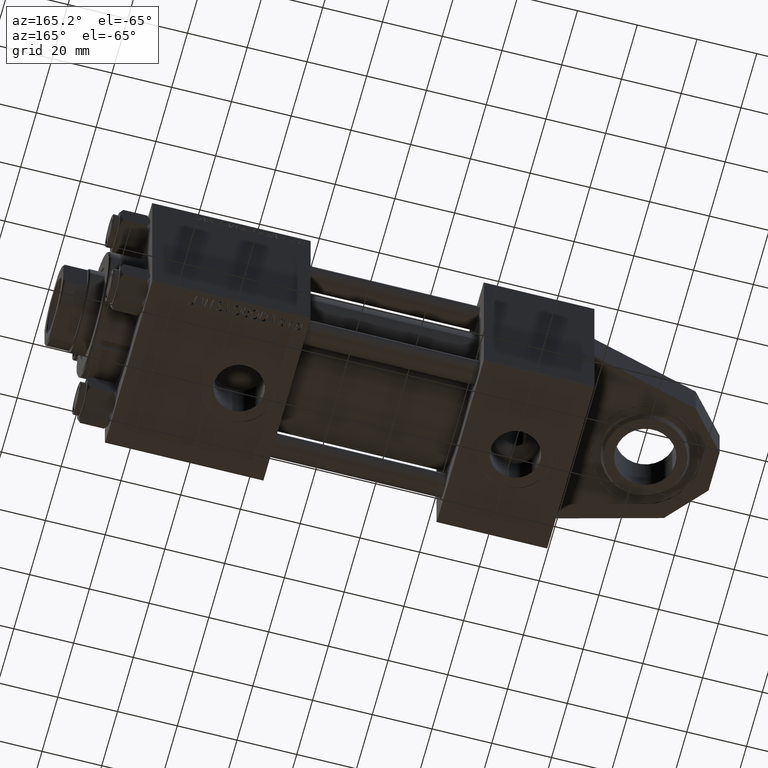
[diagram: clean part render]
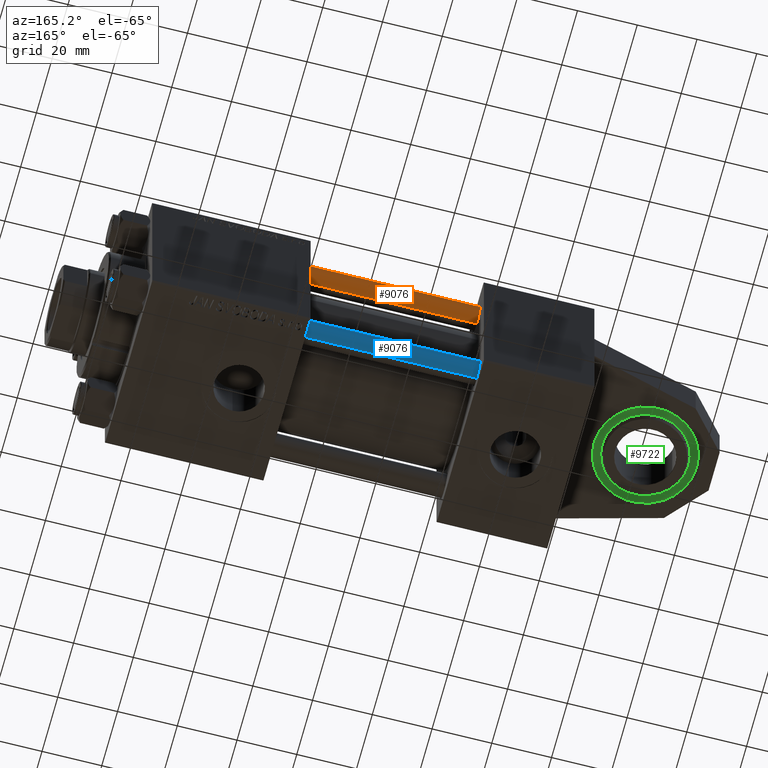
[diagram: same view with three faces highlighted in distinct colors, each labeled with its STEP entity id]
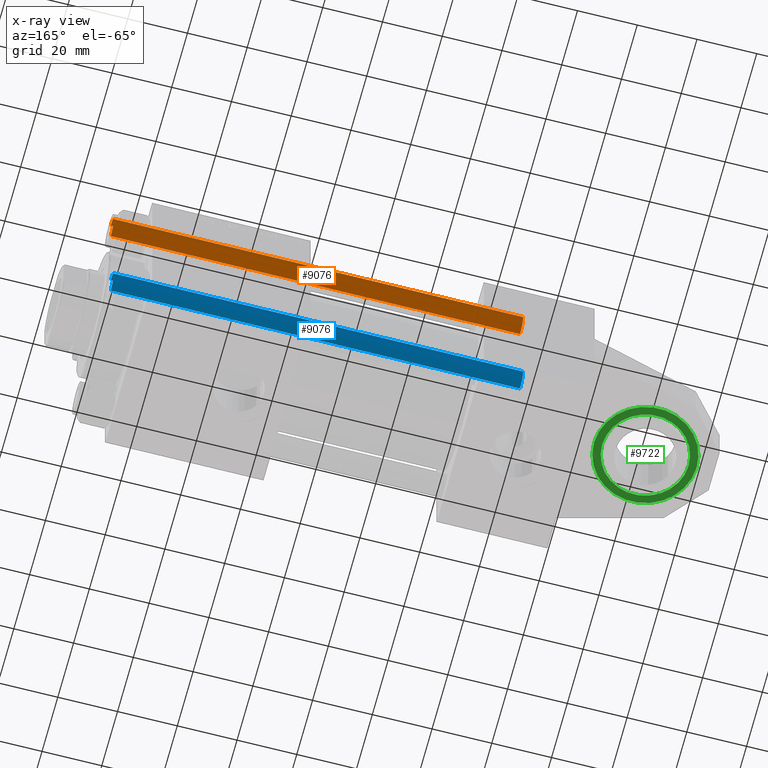
[diagram: x-ray of the same camera — body ghosted, the three highlighted faces saturated]
A machine part, auxiliary view with three faces highlighted in distinct colors.
The next image is the same camera in x-ray (body ghosted, the three faces saturated) — at least one of them is partly hidden behind the body in this view.
Their STEP definitions:

[orange] entity #9076 — the highlighted cylindrical surface (edge-blend (fillet) strip) has radius 4 mm, axis along (1, 0, 0).
#226 = CARTESIAN_POINT ( 'NONE',  ( 4.000000000000000000, 4.898587196589412829E-16, 0.5000000000000281997 ) ) ;
#2064 = VERTEX_POINT ( 'NONE', #226 ) ;
#5380 = CARTESIAN_POINT ( 'NONE',  ( 0.000000000000000000, 0.000000000000000000, 138.0000000000000000 ) ) ;
#5450 = DIRECTION ( 'NONE',  ( 1.000000000000000000, 0.000000000000000000, 0.000000000000000000 ) ) ;
#6312 = CARTESIAN_POINT ( 'NONE',  ( 0.000000000000000000, 0.000000000000000000, 137.5000000000000284 ) ) ;
#8239 = CARTESIAN_POINT ( 'NONE',  ( -4.000000000000000000, 0.000000000000000000, 138.0000000000000000 ) ) ;
#8871 = CIRCLE ( 'NONE', #43004, 4.000000000000000000 ) ;
#9076 = ADVANCED_FACE ( 'NONE', ( #33107 ), #24702, .T. ) ;
#9277 = CARTESIAN_POINT ( 'NONE',  ( 0.000000000000000000, 0.000000000000000000, 0.5000000000000281997 ) ) ;
#10579 = AXIS2_PLACEMENT_3D ( 'NONE', #5380, #36684, #14030 ) ;
#10891 = CIRCLE ( 'NONE', #17364, 4.000000000000000000 ) ;
#14013 = EDGE_LOOP ( 'NONE', ( #44463, #42677, #37957, #20596 ) ) ;
#14030 = DIRECTION ( 'NONE',  ( -1.000000000000000000, 0.000000000000000000, 0.000000000000000000 ) ) ;
#15125 = LINE ( 'NONE', #8239, #18853 ) ;
#15601 = EDGE_CURVE ( 'NONE', #2064, #28505, #10891, .T. ) ;
#17364 = AXIS2_PLACEMENT_3D ( 'NONE', #9277, #40325, #5450 ) ;
#17430 = CARTESIAN_POINT ( 'NONE',  ( 4.000000000000000000, 4.898587196589412829E-16, 138.0000000000000000 ) ) ;
#18853 = VECTOR ( 'NONE', #35459, 1000.000000000000000 ) ;
#19339 = EDGE_CURVE ( 'NONE', #28121, #41296, #8871, .T. ) ;
#20596 = ORIENTED_EDGE ( 'NONE', *, *, #46494, .F. ) ;
#22116 = VECTOR ( 'NONE', #44410, 1000.000000000000000 ) ;
#24702 = CYLINDRICAL_SURFACE ( 'NONE', #10579, 4.000000000000000000 ) ;
#26286 = CARTESIAN_POINT ( 'NONE',  ( -4.000000000000000000, 0.000000000000000000, 137.5000000000000284 ) ) ;
#28121 = VERTEX_POINT ( 'NONE', #26286 ) ;
#28505 = VERTEX_POINT ( 'NONE', #31292 ) ;
#30854 = EDGE_CURVE ( 'NONE', #41296, #2064, #48226, .T. ) ;
#31292 = CARTESIAN_POINT ( 'NONE',  ( -4.000000000000000000, 0.000000000000000000, 0.5000000000000281997 ) ) ;
#33107 = FACE_OUTER_BOUND ( 'NONE', #14013, .T. ) ;
#33535 = DIRECTION ( 'NONE',  ( 1.000000000000000000, 0.000000000000000000, 0.000000000000000000 ) ) ;
#35459 = DIRECTION ( 'NONE',  ( -0.000000000000000000, -0.000000000000000000, -1.000000000000000000 ) ) ;
#36684 = DIRECTION ( 'NONE',  ( -0.000000000000000000, -0.000000000000000000, -1.000000000000000000 ) ) ;
#37957 = ORIENTED_EDGE ( 'NONE', *, *, #15601, .T. ) ;
#40325 = DIRECTION ( 'NONE',  ( -0.000000000000000000, -0.000000000000000000, 1.000000000000000000 ) ) ;
#41296 = VERTEX_POINT ( 'NONE', #46204 ) ;
#42677 = ORIENTED_EDGE ( 'NONE', *, *, #30854, .T. ) ;
#43004 = AXIS2_PLACEMENT_3D ( 'NONE', #6312, #48034, #33535 ) ;
#44410 = DIRECTION ( 'NONE',  ( -0.000000000000000000, -0.000000000000000000, -1.000000000000000000 ) ) ;
#44463 = ORIENTED_EDGE ( 'NONE', *, *, #19339, .T. ) ;
#46204 = CARTESIAN_POINT ( 'NONE',  ( 4.000000000000000000, 4.898587196589412829E-16, 137.5000000000000284 ) ) ;
#46494 = EDGE_CURVE ( 'NONE', #28121, #28505, #15125, .T. ) ;
#48034 = DIRECTION ( 'NONE',  ( 0.000000000000000000, 0.000000000000000000, -1.000000000000000000 ) ) ;
#48226 = LINE ( 'NONE', #17430, #22116 ) ;

[blue] entity #9076 — the highlighted cylindrical surface (edge-blend (fillet) strip) has radius 4 mm, axis along (-1, -0, 0).
#226 = CARTESIAN_POINT ( 'NONE',  ( 4.000000000000000000, 4.898587196589412829E-16, 0.5000000000000281997 ) ) ;
#2064 = VERTEX_POINT ( 'NONE', #226 ) ;
#5380 = CARTESIAN_POINT ( 'NONE',  ( 0.000000000000000000, 0.000000000000000000, 138.0000000000000000 ) ) ;
#5450 = DIRECTION ( 'NONE',  ( 1.000000000000000000, 0.000000000000000000, 0.000000000000000000 ) ) ;
#6312 = CARTESIAN_POINT ( 'NONE',  ( 0.000000000000000000, 0.000000000000000000, 137.5000000000000284 ) ) ;
#8239 = CARTESIAN_POINT ( 'NONE',  ( -4.000000000000000000, 0.000000000000000000, 138.0000000000000000 ) ) ;
#8871 = CIRCLE ( 'NONE', #43004, 4.000000000000000000 ) ;
#9076 = ADVANCED_FACE ( 'NONE', ( #33107 ), #24702, .T. ) ;
#9277 = CARTESIAN_POINT ( 'NONE',  ( 0.000000000000000000, 0.000000000000000000, 0.5000000000000281997 ) ) ;
#10579 = AXIS2_PLACEMENT_3D ( 'NONE', #5380, #36684, #14030 ) ;
#10891 = CIRCLE ( 'NONE', #17364, 4.000000000000000000 ) ;
#14013 = EDGE_LOOP ( 'NONE', ( #44463, #42677, #37957, #20596 ) ) ;
#14030 = DIRECTION ( 'NONE',  ( -1.000000000000000000, 0.000000000000000000, 0.000000000000000000 ) ) ;
#15125 = LINE ( 'NONE', #8239, #18853 ) ;
#15601 = EDGE_CURVE ( 'NONE', #2064, #28505, #10891, .T. ) ;
#17364 = AXIS2_PLACEMENT_3D ( 'NONE', #9277, #40325, #5450 ) ;
#17430 = CARTESIAN_POINT ( 'NONE',  ( 4.000000000000000000, 4.898587196589412829E-16, 138.0000000000000000 ) ) ;
#18853 = VECTOR ( 'NONE', #35459, 1000.000000000000000 ) ;
#19339 = EDGE_CURVE ( 'NONE', #28121, #41296, #8871, .T. ) ;
#20596 = ORIENTED_EDGE ( 'NONE', *, *, #46494, .F. ) ;
#22116 = VECTOR ( 'NONE', #44410, 1000.000000000000000 ) ;
#24702 = CYLINDRICAL_SURFACE ( 'NONE', #10579, 4.000000000000000000 ) ;
#26286 = CARTESIAN_POINT ( 'NONE',  ( -4.000000000000000000, 0.000000000000000000, 137.5000000000000284 ) ) ;
#28121 = VERTEX_POINT ( 'NONE', #26286 ) ;
#28505 = VERTEX_POINT ( 'NONE', #31292 ) ;
#30854 = EDGE_CURVE ( 'NONE', #41296, #2064, #48226, .T. ) ;
#31292 = CARTESIAN_POINT ( 'NONE',  ( -4.000000000000000000, 0.000000000000000000, 0.5000000000000281997 ) ) ;
#33107 = FACE_OUTER_BOUND ( 'NONE', #14013, .T. ) ;
#33535 = DIRECTION ( 'NONE',  ( 1.000000000000000000, 0.000000000000000000, 0.000000000000000000 ) ) ;
#35459 = DIRECTION ( 'NONE',  ( -0.000000000000000000, -0.000000000000000000, -1.000000000000000000 ) ) ;
#36684 = DIRECTION ( 'NONE',  ( -0.000000000000000000, -0.000000000000000000, -1.000000000000000000 ) ) ;
#37957 = ORIENTED_EDGE ( 'NONE', *, *, #15601, .T. ) ;
#40325 = DIRECTION ( 'NONE',  ( -0.000000000000000000, -0.000000000000000000, 1.000000000000000000 ) ) ;
#41296 = VERTEX_POINT ( 'NONE', #46204 ) ;
#42677 = ORIENTED_EDGE ( 'NONE', *, *, #30854, .T. ) ;
#43004 = AXIS2_PLACEMENT_3D ( 'NONE', #6312, #48034, #33535 ) ;
#44410 = DIRECTION ( 'NONE',  ( -0.000000000000000000, -0.000000000000000000, -1.000000000000000000 ) ) ;
#44463 = ORIENTED_EDGE ( 'NONE', *, *, #19339, .T. ) ;
#46204 = CARTESIAN_POINT ( 'NONE',  ( 4.000000000000000000, 4.898587196589412829E-16, 137.5000000000000284 ) ) ;
#46494 = EDGE_CURVE ( 'NONE', #28121, #28505, #15125, .T. ) ;
#48034 = DIRECTION ( 'NONE',  ( 0.000000000000000000, 0.000000000000000000, -1.000000000000000000 ) ) ;
#48226 = LINE ( 'NONE', #17430, #22116 ) ;

[green] entity #9722 — the highlighted planar face has unit normal (0, 0, 1).
#583 = EDGE_LOOP ( 'NONE', ( #10929, #47353 ) ) ;
#2955 = FACE_BOUND ( 'NONE', #583, .T. ) ;
#5491 = AXIS2_PLACEMENT_3D ( 'NONE', #37951, #11470, #49888 ) ;
#6278 = PLANE ( 'NONE',  #39842 ) ;
#9722 = ADVANCED_FACE ( 'NONE', ( #22535, #2955 ), #6278, .F. ) ;
#10929 = ORIENTED_EDGE ( 'NONE', *, *, #15929, .T. ) ;
#11470 = DIRECTION ( 'NONE',  ( -0.000000000000000000, -0.000000000000000000, 1.000000000000000000 ) ) ;
#12823 = CIRCLE ( 'NONE', #45344, 14.49999999999999822 ) ;
#13221 = VERTEX_POINT ( 'NONE', #25006 ) ;
#13739 = AXIS2_PLACEMENT_3D ( 'NONE', #42473, #23136, #34838 ) ;
#15929 = EDGE_CURVE ( 'NONE', #13221, #37927, #12823, .T. ) ;
#16143 = EDGE_CURVE ( 'NONE', #37927, #13221, #20114, .T. ) ;
#16820 = DIRECTION ( 'NONE',  ( -0.000000000000000000, -0.000000000000000000, 1.000000000000000000 ) ) ;
#18177 = DIRECTION ( 'NONE',  ( 0.000000000000000000, 0.000000000000000000, -1.000000000000000000 ) ) ;
#18777 = EDGE_CURVE ( 'NONE', #23004, #20169, #43759, .T. ) ;
#19195 = EDGE_CURVE ( 'NONE', #20169, #23004, #24284, .T. ) ;
#20114 = CIRCLE ( 'NONE', #5491, 14.49999999999999822 ) ;
#20169 = VERTEX_POINT ( 'NONE', #46608 ) ;
#21464 = CARTESIAN_POINT ( 'NONE',  ( -14.49999999999999822, 1.775737858763662015E-15, -6.499999999999997335 ) ) ;
#21843 = AXIS2_PLACEMENT_3D ( 'NONE', #45659, #18177, #22253 ) ;
#22037 = CARTESIAN_POINT ( 'NONE',  ( 0.000000000000000000, 17.50000000000000000, -6.499999999999997335 ) ) ;
#22253 = DIRECTION ( 'NONE',  ( 1.000000000000000000, 0.000000000000000000, 0.000000000000000000 ) ) ;
#22321 = EDGE_LOOP ( 'NONE', ( #33118, #25755 ) ) ;
#22535 = FACE_OUTER_BOUND ( 'NONE', #22321, .T. ) ;
#23004 = VERTEX_POINT ( 'NONE', #48377 ) ;
#23136 = DIRECTION ( 'NONE',  ( 0.000000000000000000, 0.000000000000000000, -1.000000000000000000 ) ) ;
#24284 = CIRCLE ( 'NONE', #13739, 17.19999999999999929 ) ;
#25006 = CARTESIAN_POINT ( 'NONE',  ( 14.49999999999999822, 0.000000000000000000, -6.499999999999997335 ) ) ;
#25218 = DIRECTION ( 'NONE',  ( 1.000000000000000000, 0.000000000000000000, 0.000000000000000000 ) ) ;
#25755 = ORIENTED_EDGE ( 'NONE', *, *, #18777, .T. ) ;
#26351 = DIRECTION ( 'NONE',  ( 1.000000000000000000, 0.000000000000000000, 0.000000000000000000 ) ) ;
#33118 = ORIENTED_EDGE ( 'NONE', *, *, #19195, .T. ) ;
#34838 = DIRECTION ( 'NONE',  ( 1.000000000000000000, 0.000000000000000000, 0.000000000000000000 ) ) ;
#37927 = VERTEX_POINT ( 'NONE', #21464 ) ;
#37951 = CARTESIAN_POINT ( 'NONE',  ( 0.000000000000000000, 0.000000000000000000, -6.499999999999997335 ) ) ;
#39842 = AXIS2_PLACEMENT_3D ( 'NONE', #22037, #45207, #26351 ) ;
#42473 = CARTESIAN_POINT ( 'NONE',  ( 0.000000000000000000, 0.000000000000000000, -6.499999999999997335 ) ) ;
#43759 = CIRCLE ( 'NONE', #21843, 17.19999999999999929 ) ;
#45207 = DIRECTION ( 'NONE',  ( 0.000000000000000000, -0.000000000000000000, 1.000000000000000000 ) ) ;
#45344 = AXIS2_PLACEMENT_3D ( 'NONE', #50256, #16820, #25218 ) ;
#45659 = CARTESIAN_POINT ( 'NONE',  ( 0.000000000000000000, 0.000000000000000000, -6.499999999999997335 ) ) ;
#46608 = CARTESIAN_POINT ( 'NONE',  ( 17.19999999999999929, 0.000000000000000000, -6.499999999999997335 ) ) ;
#47353 = ORIENTED_EDGE ( 'NONE', *, *, #16143, .T. ) ;
#48377 = CARTESIAN_POINT ( 'NONE',  ( -17.19999999999999929, 2.124762196520657818E-15, -6.499999999999997335 ) ) ;
#49888 = DIRECTION ( 'NONE',  ( 1.000000000000000000, 0.000000000000000000, 0.000000000000000000 ) ) ;
#50256 = CARTESIAN_POINT ( 'NONE',  ( 0.000000000000000000, 0.000000000000000000, -6.499999999999997335 ) ) ;